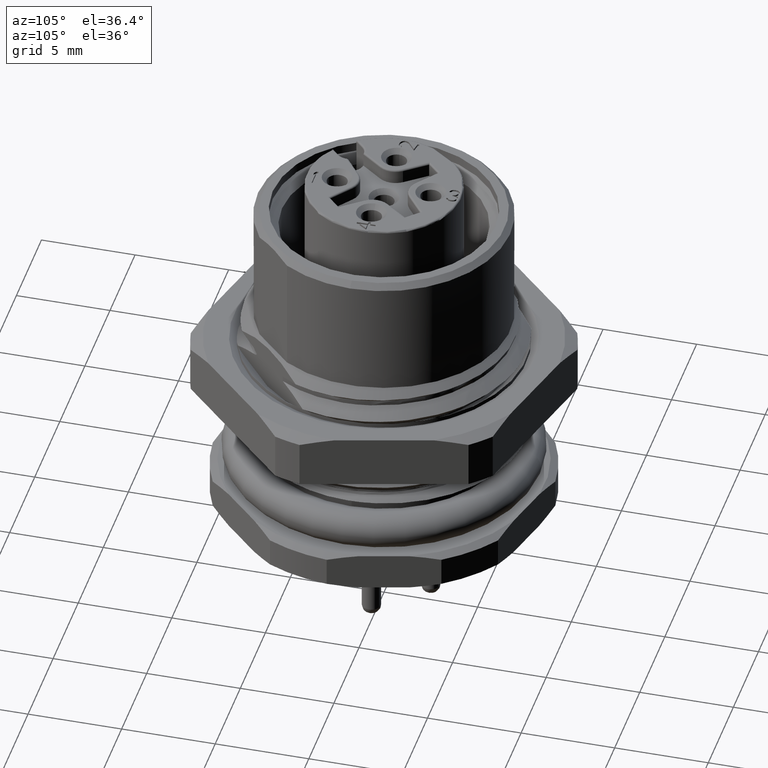
[diagram: clean part render]
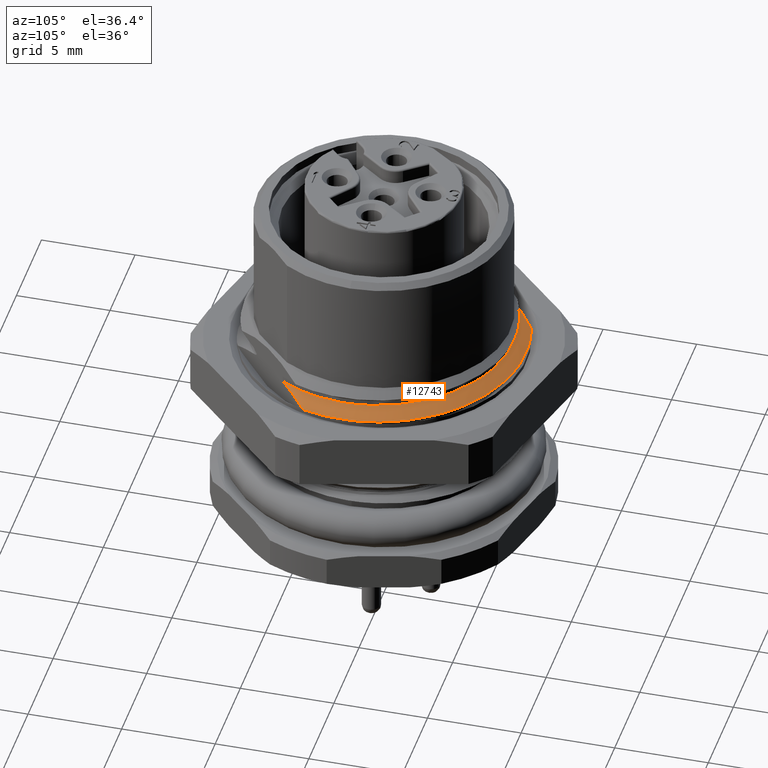
[diagram: same view with one face highlighted and labeled with its STEP entity id]
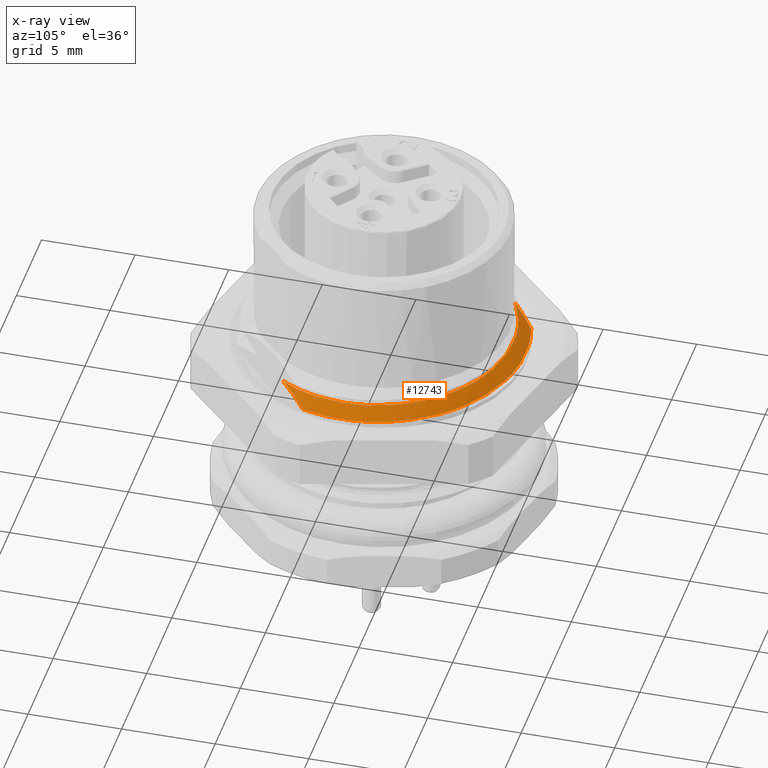
[diagram: x-ray of the same camera — body ghosted, the highlighted face saturated]
A machine part, auxiliary view. The second image highlights one B-rep face of the part: STEP entity #12743.
The next image is the same camera in x-ray: the body ghosted, the highlighted face saturated — about 0% of this face is hidden behind the body in this view.
In plain terms, the highlighted face is a freeform B-spline surface patch.
Its self-contained STEP definition (entity closure, byte-faithful):
#77=CARTESIAN_POINT('',(7.208326112067E0,-2.408326112070E0,5.267640962062E0));
#78=CARTESIAN_POINT('',(7.081419502494E0,-2.535232721643E0,5.330154543476E0));
#79=CARTESIAN_POINT('',(6.830791921797E0,-2.785860302340E0,5.444739576145E0));
#80=CARTESIAN_POINT('',(6.465727004531E0,-3.150925219606E0,5.584706145498E0));
#81=CARTESIAN_POINT('',(6.107558973853E0,-3.509093250284E0,5.694430437112E0));
#82=CARTESIAN_POINT('',(5.870734247629E0,-3.745917976508E0,5.747842241309E0));
#83=CARTESIAN_POINT('',(5.753021830276E0,-3.863630393861E0,5.769481954449E0));
#2377=CARTESIAN_POINT('',(-3.172766208039E0,6.161043303624E0,6.361414991419E0));
#2378=CARTESIAN_POINT('',(-3.047204058648E0,6.286605453014E0,6.310506855100E0));
#2379=CARTESIAN_POINT('',(-2.793167148890E0,6.540642362772E0,6.197311654339E0));
#2380=CARTESIAN_POINT('',(-2.405984679262E0,6.927824832400E0,5.995562766421E0));
#2381=CARTESIAN_POINT('',(-2.138191320376E0,7.195618191287E0,5.837199687121E0));
#2382=CARTESIAN_POINT('',(-2.002322236936E0,7.331487274726E0,5.752329710837E0));
#3167=CARTESIAN_POINT('',(-2.002322236936E0,7.331487274726E0,5.752329710837E0));
#3168=CARTESIAN_POINT('',(-1.750915868238E0,7.400149545243E0,5.744634448420E0));
#3169=CARTESIAN_POINT('',(-1.241085549638E0,7.511571424846E0,5.729245510246E0));
#3170=CARTESIAN_POINT('',(-4.634952531476E-1,7.599280951240E0,
5.706170179545E0));
#3171=CARTESIAN_POINT('',(3.190549426031E-1,7.606728084581E0,5.683092975669E0));
#3172=CARTESIAN_POINT('',(1.098641580535E0,7.533730762613E0,5.660003649252E0));
#3173=CARTESIAN_POINT('',(1.866209891698E0,7.381134926474E0,5.636926325286E0));
#3174=CARTESIAN_POINT('',(2.613990712083E0,7.150598809406E0,5.613851305463E0));
#3175=CARTESIAN_POINT('',(3.334449303115E0,6.844383469394E0,5.590766795905E0));
#3176=CARTESIAN_POINT('',(4.019643021068E0,6.465793033598E0,5.567682423633E0));
#3177=CARTESIAN_POINT('',(4.662088905249E0,6.019038158085E0,5.544607336074E0));
#3178=CARTESIAN_POINT('',(5.255353391947E0,5.508663360602E0,5.521530038711E0));
#3179=CARTESIAN_POINT('',(5.793346392914E0,4.939762075500E0,5.498440690488E0));
#3180=CARTESIAN_POINT('',(6.269819455450E0,4.318941470852E0,5.475363399824E0));
#3181=CARTESIAN_POINT('',(6.680026439913E0,3.652568778408E0,5.452288393993E0));
#3182=CARTESIAN_POINT('',(7.019793505051E0,2.947309829324E0,5.429203819559E0));
#3183=CARTESIAN_POINT('',(7.285324143677E0,2.210895687023E0,5.406119613739E0));
#3184=CARTESIAN_POINT('',(7.473774023965E0,1.451412155872E0,5.383044489332E0));
#3185=CARTESIAN_POINT('',(7.583298809993E0,6.765251620344E-1,5.359967185078E0));
#3186=CARTESIAN_POINT('',(7.612679754372E0,-1.059102749702E-1,
5.336878150601E0));
#3187=CARTESIAN_POINT('',(7.561575159072E0,-8.868400574718E-1,
5.313800518019E0));
#3188=CARTESIAN_POINT('',(7.430609658929E0,-1.658323713408E0,5.290725200624E0));
#3189=CARTESIAN_POINT('',(7.290910805373E0,-2.161143058981E0,5.275336225821E0));
#3190=CARTESIAN_POINT('',(7.208326112067E0,-2.408326112070E0,5.267640962062E0));
#3192=CARTESIAN_POINT('',(-3.172766208039E0,6.161043303624E0,6.361414991419E0));
#3193=CARTESIAN_POINT('',(-2.956030777621E0,6.272656031505E0,6.353520668349E0));
#3194=CARTESIAN_POINT('',(-2.510815857942E0,6.472961118562E0,6.337733696431E0));
#3195=CARTESIAN_POINT('',(-1.815307729017E0,6.701342196903E0,6.314061439741E0));
#3196=CARTESIAN_POINT('',(-1.099581568356E0,6.855248269533E0,6.290387848660E0));
#3197=CARTESIAN_POINT('',(-3.712307932491E-1,6.932943991125E0,
6.266701441314E0));
#3198=CARTESIAN_POINT('',(3.608986645252E-1,6.933476437505E0,6.243026468752E0));
#3199=CARTESIAN_POINT('',(1.088921580018E0,6.856941574509E0,6.219354524695E0));
#3200=CARTESIAN_POINT('',(1.805050133538E0,6.704128021169E0,6.195675619572E0));
#3201=CARTESIAN_POINT('',(2.501241978432E0,6.476669979296E0,6.171991672285E0));
#3202=CARTESIAN_POINT('',(3.169271843529E0,6.177299444805E0,6.148319485672E0));
#3203=CARTESIAN_POINT('',(3.802094094578E0,5.809266053483E0,6.124646734015E0));
#3204=CARTESIAN_POINT('',(4.392948706076E0,5.376386772179E0,6.100961164312E0));
#3205=CARTESIAN_POINT('',(4.934708574176E0,4.883852947383E0,6.077284439137E0));
#3206=CARTESIAN_POINT('',(5.421501561733E0,4.337129135711E0,6.053612506730E0));
#3207=CARTESIAN_POINT('',(5.848114375477E0,3.742070457595E0,6.029935781556E0));
#3208=CARTESIAN_POINT('',(6.209797821255E0,3.105141317768E0,6.006250211852E0));
#3209=CARTESIAN_POINT('',(6.502219140289E0,2.434021096999E0,5.982577460195E0));
#3210=CARTESIAN_POINT('',(6.722368312571E0,1.735865699163E0,5.958905273582E0));
#3211=CARTESIAN_POINT('',(6.867831858953E0,1.018049147123E0,5.935221326296E0));
#3212=CARTESIAN_POINT('',(6.936846820060E0,2.890573622627E-1,5.911542421172E0));
#3213=CARTESIAN_POINT('',(6.928719529149E0,-4.429323220085E-1,
5.887870477115E0));
#3214=CARTESIAN_POINT('',(6.843566815002E0,-1.170093130711E0,5.864195504554E0));
#3215=CARTESIAN_POINT('',(6.682204775755E0,-1.884581597408E0,5.840509097208E0));
#3216=CARTESIAN_POINT('',(6.446602413512E0,-2.577721224866E0,5.816835506126E0));
#3217=CARTESIAN_POINT('',(6.139361134341E0,-3.242170072196E0,5.793163249436E0));
#3218=CARTESIAN_POINT('',(5.888938030686E0,-3.661248491781E0,5.777376277518E0));
#3219=CARTESIAN_POINT('',(5.753021830276E0,-3.863630393861E0,5.769481954449E0));
#6233=VERTEX_POINT('',#3167);
#6234=VERTEX_POINT('',#3190);
#6241=VERTEX_POINT('',#3192);
#6242=VERTEX_POINT('',#3219);
#12691=CARTESIAN_POINT('',(-3.172766208039E0,6.161043303624E0,
6.361414991419E0));
#12692=CARTESIAN_POINT('',(-2.495629504761E0,6.509749901599E0,
6.336751114878E0));
#12693=CARTESIAN_POINT('',(-1.025491749573E0,6.981788309533E0,
6.287423361797E0));
#12694=CARTESIAN_POINT('',(1.290317349973E0,6.937740619222E0,6.213431732176E0));
#12695=CARTESIAN_POINT('',(3.467083622402E0,6.146252387184E0,6.139440102555E0));
#12696=CARTESIAN_POINT('',(5.270339927837E0,4.692615291564E0,6.065448472934E0));
#12697=CARTESIAN_POINT('',(6.505803016047E0,2.733425390986E0,5.991456843312E0));
#12698=CARTESIAN_POINT('',(7.040382818015E0,4.797640451832E-1,
5.917465213691E0));
#12699=CARTESIAN_POINT('',(6.816460417537E0,-1.825614609861E0,
5.843473584070E0));
#12700=CARTESIAN_POINT('',(6.177658668333E0,-3.231337770021E0,
5.794145830989E0));
#12701=CARTESIAN_POINT('',(5.753021830276E0,-3.863630393861E0,
5.769481954449E0));
#12702=CARTESIAN_POINT('',(-3.275015046874E0,6.359595444722E0,
6.174016073789E0));
#12703=CARTESIAN_POINT('',(-2.576056237237E0,6.719539821467E0,
6.149352197249E0));
#12704=CARTESIAN_POINT('',(-1.058540305236E0,7.206790626387E0,
6.100024444168E0));
#12705=CARTESIAN_POINT('',(1.331900448794E0,7.161323409741E0,6.026032814547E0));
#12706=CARTESIAN_POINT('',(3.578817438035E0,6.344327860941E0,5.952041184925E0));
#12707=CARTESIAN_POINT('',(5.440187342539E0,4.843844355794E0,5.878049555304E0));
#12708=CARTESIAN_POINT('',(6.715465739508E0,2.821515579152E0,5.804057925683E0));
#12709=CARTESIAN_POINT('',(7.267273461982E0,4.952254165287E-1,
5.730066296062E0));
#12710=CARTESIAN_POINT('',(7.036134707087E0,-1.884448750727E0,
5.656074666440E0));
#12711=CARTESIAN_POINT('',(6.376746273325E0,-3.335474196472E0,
5.606746913360E0));
#12712=CARTESIAN_POINT('',(5.938424650203E0,-3.988143735077E0,
5.582083036819E0));
#12713=CARTESIAN_POINT('',(-3.377263885710E0,6.558147585820E0,
5.986617156159E0));
#12714=CARTESIAN_POINT('',(-2.656482969715E0,6.929329741336E0,
5.961953279618E0));
#12715=CARTESIAN_POINT('',(-1.091588860898E0,7.431792943241E0,
5.912625526537E0));
#12716=CARTESIAN_POINT('',(1.373483547614E0,7.384906200259E0,5.838633896916E0));
#12717=CARTESIAN_POINT('',(3.690551253667E0,6.542403334699E0,5.764642267295E0));
#12718=CARTESIAN_POINT('',(5.610034757240E0,4.995073420025E0,5.690650637673E0));
#12719=CARTESIAN_POINT('',(6.925128462968E0,2.909605767318E0,5.616659008052E0));
#12720=CARTESIAN_POINT('',(7.494164105949E0,5.106867878749E-1,
5.542667378431E0));
#12721=CARTESIAN_POINT('',(7.255808996637E0,-1.943282891593E0,
5.468675748810E0));
#12722=CARTESIAN_POINT('',(6.575833878318E0,-3.439610622922E0,
5.419347995729E0));
#12723=CARTESIAN_POINT('',(6.123827470131E0,-4.112657076293E0,
5.394684119188E0));
#12724=CARTESIAN_POINT('',(-3.479512724545E0,6.756699726918E0,
5.799218238529E0));
#12725=CARTESIAN_POINT('',(-2.736909702191E0,7.139119661205E0,
5.774554361989E0));
#12726=CARTESIAN_POINT('',(-1.124637416560E0,7.656795260094E0,
5.725226608908E0));
#12727=CARTESIAN_POINT('',(1.415066646435E0,7.608488990778E0,5.651234979286E0));
#12728=CARTESIAN_POINT('',(3.802285069300E0,6.740478808456E0,5.577243349665E0));
#12729=CARTESIAN_POINT('',(5.779882171942E0,5.146302484256E0,5.503251720044E0));
#12730=CARTESIAN_POINT('',(7.134791186429E0,2.997695955484E0,5.429260090423E0));
#12731=CARTESIAN_POINT('',(7.721054749915E0,5.261481592205E-1,
5.355268460801E0));
#12732=CARTESIAN_POINT('',(7.475483286187E0,-2.002117032459E0,
5.281276831180E0));
#12733=CARTESIAN_POINT('',(6.774921483310E0,-3.543747049373E0,
5.231949078099E0));
#12734=CARTESIAN_POINT('',(6.309230290058E0,-4.237170417509E0,
5.207285201559E0));
#12735=B_SPLINE_SURFACE_WITH_KNOTS('',3,3,((#12691,#12692,#12693,#12694,#12695,
#12696,#12697,#12698,#12699,#12700,#12701),(#12702,#12703,#12704,#12705,#12706,
#12707,#12708,#12709,#12710,#12711,#12712),(#12713,#12714,#12715,#12716,#12717,
#12718,#12719,#12720,#12721,#12722,#12723),(#12724,#12725,#12726,#12727,#12728,
#12729,#12730,#12731,#12732,#12733,#12734)),.UNSPECIFIED.,.F.,.F.,.F.,(4,4),(4,
1,1,1,1,1,1,1,4),(0.E0,9.999999999999E-1),(5.513995973867E-1,5.647074444408E-1,
5.780152914950E-1,5.913231385492E-1,6.046309856034E-1,6.179388326575E-1,
6.312466797117E-1,6.445545267659E-1,6.578623738201E-1),.UNSPECIFIED.);
#12736=ORIENTED_EDGE('',*,*,#12678,.T.);
#12737=ORIENTED_EDGE('',*,*,#6725,.T.);
#12739=ORIENTED_EDGE('',*,*,#12738,.F.);
#12740=ORIENTED_EDGE('',*,*,#11202,.T.);
#12741=EDGE_LOOP('',(#12736,#12737,#12739,#12740));
#12742=FACE_OUTER_BOUND('',#12741,.F.);
#84=B_SPLINE_CURVE_WITH_KNOTS('',3,(#77,#78,#79,#80,#81,#82,#83),.UNSPECIFIED.,
.F.,.F.,(4,1,1,1,4),(0.E0,2.5E-1,5.E-1,7.5E-1,1.E0),.UNSPECIFIED.);
#2383=B_SPLINE_CURVE_WITH_KNOTS('',3,(#2377,#2378,#2379,#2380,#2381,#2382),
.UNSPECIFIED.,.F.,.F.,(4,1,1,4),(0.E0,3.333333333333E-1,6.666666666667E-1,1.E0),
.UNSPECIFIED.);
#3191=B_SPLINE_CURVE_WITH_KNOTS('',3,(#3167,#3168,#3169,#3170,#3171,#3172,#3173,
#3174,#3175,#3176,#3177,#3178,#3179,#3180,#3181,#3182,#3183,#3184,#3185,#3186,
#3187,#3188,#3189,#3190),.UNSPECIFIED.,.F.,.F.,(4,1,1,1,1,1,1,1,1,1,1,1,1,1,1,1,
1,1,1,1,1,4),(0.E0,4.761904761905E-2,9.523809523810E-2,1.428571428571E-1,
1.904761904762E-1,2.380952380952E-1,2.857142857143E-1,3.333333333333E-1,
3.809523809524E-1,4.285714285714E-1,4.761904761905E-1,5.238095238095E-1,
5.714285714286E-1,6.190476190476E-1,6.666666666667E-1,7.142857142857E-1,
7.619047619048E-1,8.095238095238E-1,8.571428571429E-1,9.047619047619E-1,
9.523809523810E-1,1.E0),.UNSPECIFIED.);
#3220=B_SPLINE_CURVE_WITH_KNOTS('',3,(#3192,#3193,#3194,#3195,#3196,#3197,#3198,
#3199,#3200,#3201,#3202,#3203,#3204,#3205,#3206,#3207,#3208,#3209,#3210,#3211,
#3212,#3213,#3214,#3215,#3216,#3217,#3218,#3219),.UNSPECIFIED.,.F.,.F.,(4,1,1,1,
1,1,1,1,1,1,1,1,1,1,1,1,1,1,1,1,1,1,1,1,1,4),(0.E0,4.E-2,8.E-2,1.2E-1,1.6E-1,
2.E-1,2.4E-1,2.8E-1,3.2E-1,3.6E-1,4.E-1,4.4E-1,4.8E-1,5.2E-1,5.6E-1,6.E-1,
6.4E-1,6.8E-1,7.2E-1,7.6E-1,8.E-1,8.4E-1,8.8E-1,9.2E-1,9.6E-1,1.E0),
.UNSPECIFIED.);
#6725=EDGE_CURVE('',#6234,#6242,#84,.T.);
#11202=EDGE_CURVE('',#6241,#6233,#2383,.T.);
#12678=EDGE_CURVE('',#6233,#6234,#3191,.T.);
#12738=EDGE_CURVE('',#6241,#6242,#3220,.T.);
#12743=ADVANCED_FACE('',(#12742),#12735,.F.);